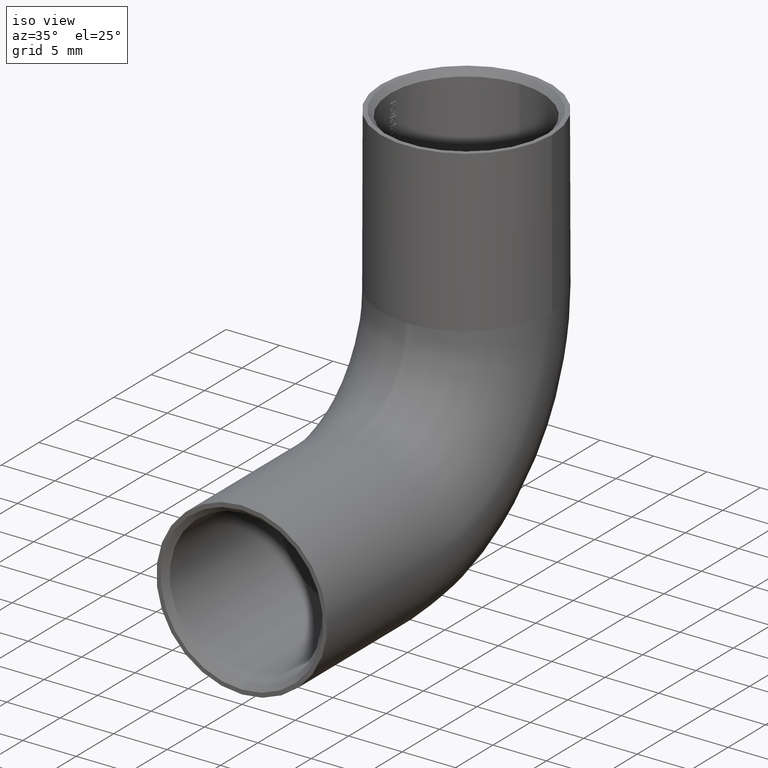
[diagram: clean part render]
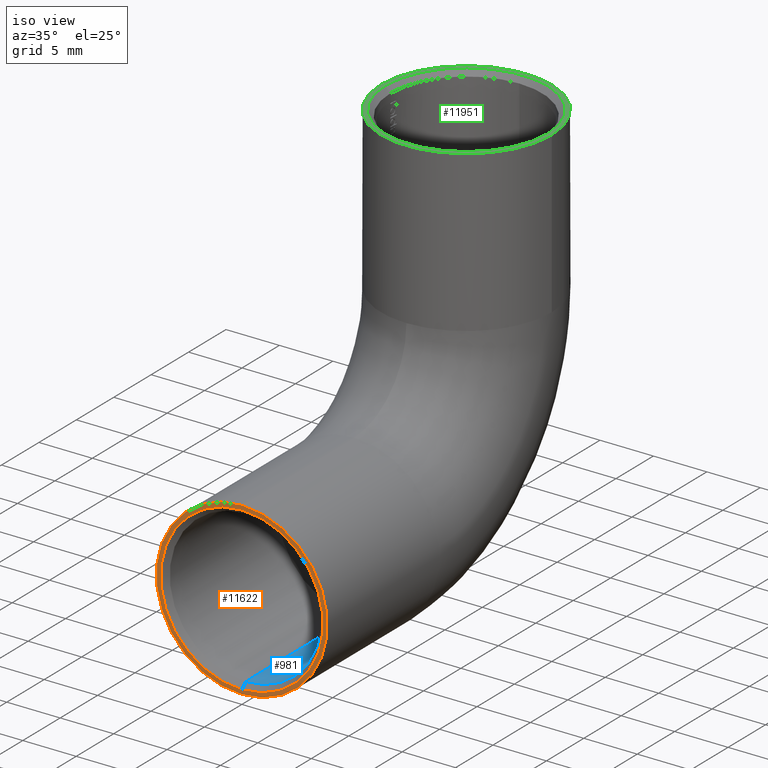
[diagram: same view with three faces highlighted in distinct colors, each labeled with its STEP entity id]
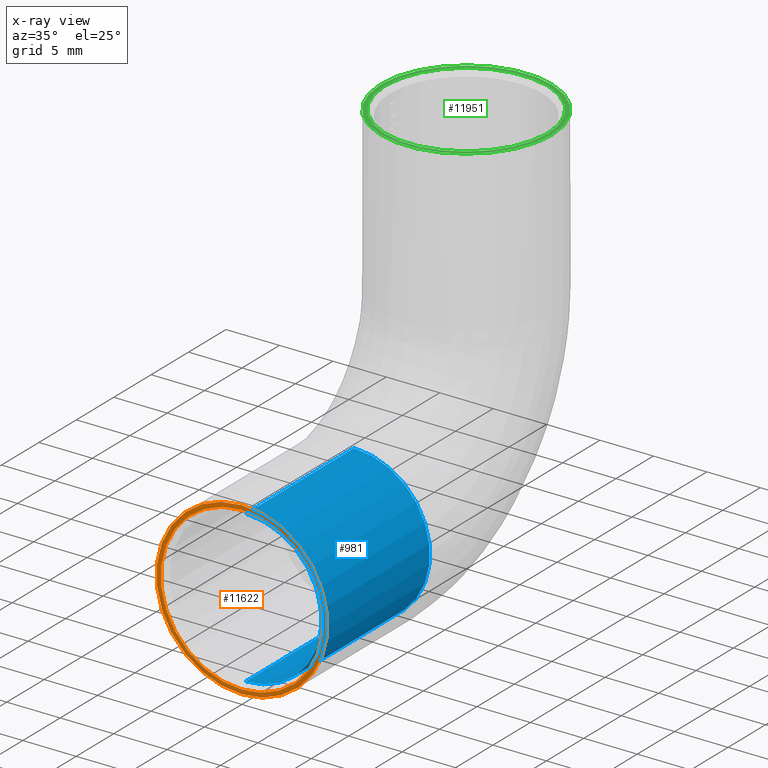
[diagram: x-ray of the same camera — body ghosted, the three highlighted faces saturated]
A machine part, iso view with three faces highlighted in distinct colors.
The next image is the same camera in x-ray (body ghosted, the three faces saturated) — at least one of them is partly hidden behind the body in this view.
Their STEP definitions:

[orange] entity #11622 — the highlighted planar face has unit normal (0, 1, 0).
#54 = VERTEX_POINT ( 'NONE', #3179 ) ;
#81 = ORIENTED_EDGE ( 'NONE', *, *, #2505, .F. ) ;
#802 = VERTEX_POINT ( 'NONE', #3618 ) ;
#840 = CARTESIAN_POINT ( 'NONE',  ( 0.000000000000000000, 0.000000000000000000, 0.000000000000000000 ) ) ;
#1133 = EDGE_CURVE ( 'NONE', #11104, #54, #6671, .T. ) ;
#1270 = PLANE ( 'NONE',  #3409 ) ;
#1829 = CARTESIAN_POINT ( 'NONE',  ( 0.000000000000000000, 0.000000000000000000, 0.000000000000000000 ) ) ;
#1948 = DIRECTION ( 'NONE',  ( 0.000000000000000000, 0.000000000000000000, 1.000000000000000000 ) ) ;
#2402 = CIRCLE ( 'NONE', #7638, 7.600000000000009415 ) ;
#2505 = EDGE_CURVE ( 'NONE', #802, #4926, #8345, .T. ) ;
#2728 = ORIENTED_EDGE ( 'NONE', *, *, #1133, .T. ) ;
#2842 = DIRECTION ( 'NONE',  ( 0.000000000000000000, 0.000000000000000000, 1.000000000000000000 ) ) ;
#2931 = CARTESIAN_POINT ( 'NONE',  ( 0.000000000000000000, 0.000000000000000000, 0.000000000000000000 ) ) ;
#3179 = CARTESIAN_POINT ( 'NONE',  ( 0.000000000000000000, 0.000000000000000000, -7.600000000000009415 ) ) ;
#3409 = AXIS2_PLACEMENT_3D ( 'NONE', #8233, #11319, #4399 ) ;
#3511 = AXIS2_PLACEMENT_3D ( 'NONE', #7834, #10026, #11296 ) ;
#3618 = CARTESIAN_POINT ( 'NONE',  ( 0.000000000000000000, 0.000000000000000000, -8.000000000000000000 ) ) ;
#3900 = DIRECTION ( 'NONE',  ( 0.000000000000000000, 1.000000000000000000, 0.000000000000000000 ) ) ;
#3992 = EDGE_CURVE ( 'NONE', #4926, #802, #5573, .T. ) ;
#4399 = DIRECTION ( 'NONE',  ( 0.000000000000000000, -0.000000000000000000, 1.000000000000000000 ) ) ;
#4926 = VERTEX_POINT ( 'NONE', #7789 ) ;
#5243 = ORIENTED_EDGE ( 'NONE', *, *, #3992, .F. ) ;
#5573 = CIRCLE ( 'NONE', #6494, 8.000000000000000000 ) ;
#5881 = DIRECTION ( 'NONE',  ( 0.000000000000000000, 1.000000000000000000, 0.000000000000000000 ) ) ;
#6408 = FACE_BOUND ( 'NONE', #10005, .T. ) ;
#6494 = AXIS2_PLACEMENT_3D ( 'NONE', #840, #5881, #8974 ) ;
#6671 = CIRCLE ( 'NONE', #3511, 7.600000000000009415 ) ;
#7638 = AXIS2_PLACEMENT_3D ( 'NONE', #2931, #3900, #1948 ) ;
#7789 = CARTESIAN_POINT ( 'NONE',  ( 9.797174393178825657E-16, 0.000000000000000000, 8.000000000000000000 ) ) ;
#7834 = CARTESIAN_POINT ( 'NONE',  ( 0.000000000000000000, 0.000000000000000000, 0.000000000000000000 ) ) ;
#8233 = CARTESIAN_POINT ( 'NONE',  ( 0.000000000000000000, 0.000000000000000000, 0.000000000000000000 ) ) ;
#8345 = CIRCLE ( 'NONE', #9899, 8.000000000000000000 ) ;
#8894 = DIRECTION ( 'NONE',  ( 0.000000000000000000, 1.000000000000000000, 0.000000000000000000 ) ) ;
#8974 = DIRECTION ( 'NONE',  ( 0.000000000000000000, 0.000000000000000000, 1.000000000000000000 ) ) ;
#9456 = CARTESIAN_POINT ( 'NONE',  ( 9.307315673519895320E-16, 0.000000000000000000, 7.600000000000009415 ) ) ;
#9899 = AXIS2_PLACEMENT_3D ( 'NONE', #1829, #8894, #2842 ) ;
#10005 = EDGE_LOOP ( 'NONE', ( #12309, #2728 ) ) ;
#10026 = DIRECTION ( 'NONE',  ( 0.000000000000000000, 1.000000000000000000, 0.000000000000000000 ) ) ;
#10363 = EDGE_LOOP ( 'NONE', ( #81, #5243 ) ) ;
#11104 = VERTEX_POINT ( 'NONE', #9456 ) ;
#11296 = DIRECTION ( 'NONE',  ( 0.000000000000000000, 0.000000000000000000, 1.000000000000000000 ) ) ;
#11303 = EDGE_CURVE ( 'NONE', #54, #11104, #2402, .T. ) ;
#11319 = DIRECTION ( 'NONE',  ( 0.000000000000000000, 1.000000000000000000, 0.000000000000000000 ) ) ;
#11622 = ADVANCED_FACE ( 'NONE', ( #6408, #12484 ), #1270, .F. ) ;
#12309 = ORIENTED_EDGE ( 'NONE', *, *, #11303, .T. ) ;
#12484 = FACE_OUTER_BOUND ( 'NONE', #10363, .T. ) ;

[blue] entity #981 — the highlighted cylindrical surface (partial cylindrical patch) has radius 7.1 mm, axis along (-0, -1, -0).
#321 = EDGE_CURVE ( 'NONE', #9307, #2222, #9599, .T. ) ;
#770 = AXIS2_PLACEMENT_3D ( 'NONE', #12517, #8528, #11491 ) ;
#949 = VERTEX_POINT ( 'NONE', #8073 ) ;
#981 = ADVANCED_FACE ( 'NONE', ( #3558 ), #11788, .F. ) ;
#1159 = CARTESIAN_POINT ( 'NONE',  ( 8.694992273946207746E-16, 15.00000000000000000, 7.099999999999999645 ) ) ;
#1646 = CIRCLE ( 'NONE', #770, 7.099999999999999645 ) ;
#2216 = DIRECTION ( 'NONE',  ( 0.000000000000000000, -1.000000000000000000, 0.000000000000000000 ) ) ;
#2222 = VERTEX_POINT ( 'NONE', #9980 ) ;
#2333 = EDGE_CURVE ( 'NONE', #12699, #949, #9887, .T. ) ;
#2615 = VECTOR ( 'NONE', #6971, 1000.000000000000000 ) ;
#2640 = VECTOR ( 'NONE', #12781, 1000.000000000000000 ) ;
#2843 = ORIENTED_EDGE ( 'NONE', *, *, #2333, .T. ) ;
#2911 = ORIENTED_EDGE ( 'NONE', *, *, #4488, .T. ) ;
#3558 = FACE_OUTER_BOUND ( 'NONE', #6488, .T. ) ;
#3941 = DIRECTION ( 'NONE',  ( -0.000000000000000000, -1.000000000000000000, -0.000000000000000000 ) ) ;
#4488 = EDGE_CURVE ( 'NONE', #949, #2222, #8225, .T. ) ;
#4605 = ORIENTED_EDGE ( 'NONE', *, *, #321, .F. ) ;
#5772 = ORIENTED_EDGE ( 'NONE', *, *, #9458, .F. ) ;
#6151 = AXIS2_PLACEMENT_3D ( 'NONE', #9885, #3941, #9231 ) ;
#6488 = EDGE_LOOP ( 'NONE', ( #4605, #5772, #2843, #2911 ) ) ;
#6971 = DIRECTION ( 'NONE',  ( -0.000000000000000000, -1.000000000000000000, -0.000000000000000000 ) ) ;
#7762 = CARTESIAN_POINT ( 'NONE',  ( 8.694992273946207746E-16, 15.00000000000000000, 7.099999999999999645 ) ) ;
#8040 = CARTESIAN_POINT ( 'NONE',  ( 0.000000000000000000, 0.5000000000000004441, 0.000000000000000000 ) ) ;
#8073 = CARTESIAN_POINT ( 'NONE',  ( 0.000000000000000000, 0.5000000000000004441, -7.099999999999999645 ) ) ;
#8225 = CIRCLE ( 'NONE', #12665, 7.099999999999999645 ) ;
#8528 = DIRECTION ( 'NONE',  ( 0.000000000000000000, -1.000000000000000000, 0.000000000000000000 ) ) ;
#8804 = CARTESIAN_POINT ( 'NONE',  ( 0.000000000000000000, 15.00000000000000000, -7.099999999999999645 ) ) ;
#9231 = DIRECTION ( 'NONE',  ( 0.000000000000000000, 0.000000000000000000, -1.000000000000000000 ) ) ;
#9307 = VERTEX_POINT ( 'NONE', #1159 ) ;
#9458 = EDGE_CURVE ( 'NONE', #12699, #9307, #1646, .T. ) ;
#9599 = LINE ( 'NONE', #7762, #2640 ) ;
#9885 = CARTESIAN_POINT ( 'NONE',  ( 0.000000000000000000, 15.00000000000000000, 0.000000000000000000 ) ) ;
#9887 = LINE ( 'NONE', #12904, #2615 ) ;
#9980 = CARTESIAN_POINT ( 'NONE',  ( 8.694992273946207746E-16, 0.5000000000000004441, 7.099999999999999645 ) ) ;
#11491 = DIRECTION ( 'NONE',  ( 0.000000000000000000, 0.000000000000000000, -1.000000000000000000 ) ) ;
#11788 = CYLINDRICAL_SURFACE ( 'NONE', #6151, 7.099999999999999645 ) ;
#12026 = DIRECTION ( 'NONE',  ( 0.000000000000000000, 0.000000000000000000, 1.000000000000000000 ) ) ;
#12517 = CARTESIAN_POINT ( 'NONE',  ( 0.000000000000000000, 15.00000000000000000, 0.000000000000000000 ) ) ;
#12665 = AXIS2_PLACEMENT_3D ( 'NONE', #8040, #2216, #12026 ) ;
#12699 = VERTEX_POINT ( 'NONE', #8804 ) ;
#12781 = DIRECTION ( 'NONE',  ( -0.000000000000000000, -1.000000000000000000, -0.000000000000000000 ) ) ;
#12904 = CARTESIAN_POINT ( 'NONE',  ( 0.000000000000000000, 15.00000000000000000, -7.099999999999999645 ) ) ;

[green] entity #11951 — the highlighted planar face has unit normal (0, -0, 1).
#250 = CIRCLE ( 'NONE', #4525, 7.600000000000005862 ) ;
#1706 = AXIS2_PLACEMENT_3D ( 'NONE', #9047, #2199, #10962 ) ;
#2008 = CARTESIAN_POINT ( 'NONE',  ( 0.000000000000000000, 29.99999999999999645, 30.00000000000000000 ) ) ;
#2158 = CARTESIAN_POINT ( 'NONE',  ( 0.000000000000000000, 29.99999999999999645, 30.00000000000000000 ) ) ;
#2199 = DIRECTION ( 'NONE',  ( 0.000000000000000000, -1.608122649676636601E-16, 1.000000000000000000 ) ) ;
#2389 = FACE_OUTER_BOUND ( 'NONE', #3865, .T. ) ;
#2524 = VERTEX_POINT ( 'NONE', #11689 ) ;
#3486 = DIRECTION ( 'NONE',  ( 0.000000000000000000, -1.000000000000000000, 0.000000000000000000 ) ) ;
#3546 = CARTESIAN_POINT ( 'NONE',  ( 7.600000000000005862, 29.99999999999999645, 30.00000000000000000 ) ) ;
#3865 = EDGE_LOOP ( 'NONE', ( #5369, #4198 ) ) ;
#3978 = CIRCLE ( 'NONE', #10110, 7.600000000000005862 ) ;
#4139 = DIRECTION ( 'NONE',  ( 0.000000000000000000, -1.608122649676636601E-16, 1.000000000000000000 ) ) ;
#4198 = ORIENTED_EDGE ( 'NONE', *, *, #5805, .T. ) ;
#4525 = AXIS2_PLACEMENT_3D ( 'NONE', #2008, #7996, #9972 ) ;
#4589 = EDGE_LOOP ( 'NONE', ( #12481, #11673 ) ) ;
#4987 = VERTEX_POINT ( 'NONE', #9928 ) ;
#5369 = ORIENTED_EDGE ( 'NONE', *, *, #10454, .T. ) ;
#5805 = EDGE_CURVE ( 'NONE', #4987, #2524, #7606, .T. ) ;
#6297 = VERTEX_POINT ( 'NONE', #3546 ) ;
#6715 = EDGE_CURVE ( 'NONE', #6906, #6297, #250, .T. ) ;
#6906 = VERTEX_POINT ( 'NONE', #10406 ) ;
#7157 = DIRECTION ( 'NONE',  ( 0.000000000000000000, -1.608122649676636601E-16, 1.000000000000000000 ) ) ;
#7234 = CARTESIAN_POINT ( 'NONE',  ( 0.000000000000000000, 29.99999999999999645, 30.00000000000000000 ) ) ;
#7606 = CIRCLE ( 'NONE', #10588, 8.000000000000000000 ) ;
#7996 = DIRECTION ( 'NONE',  ( -0.000000000000000000, 1.608122649676636601E-16, -1.000000000000000000 ) ) ;
#8220 = AXIS2_PLACEMENT_3D ( 'NONE', #7234, #4139, #8222 ) ;
#8222 = DIRECTION ( 'NONE',  ( 0.000000000000000000, -1.000000000000000000, -1.608122649676636601E-16 ) ) ;
#8278 = FACE_BOUND ( 'NONE', #4589, .T. ) ;
#8419 = DIRECTION ( 'NONE',  ( -0.000000000000000000, 1.608122649676636601E-16, -1.000000000000000000 ) ) ;
#9047 = CARTESIAN_POINT ( 'NONE',  ( 0.000000000000000000, 29.99999999999999645, 30.00000000000000000 ) ) ;
#9177 = DIRECTION ( 'NONE',  ( 0.000000000000000000, -1.000000000000000000, 0.000000000000000000 ) ) ;
#9208 = PLANE ( 'NONE',  #8220 ) ;
#9691 = CIRCLE ( 'NONE', #1706, 8.000000000000000000 ) ;
#9722 = EDGE_CURVE ( 'NONE', #6297, #6906, #3978, .T. ) ;
#9928 = CARTESIAN_POINT ( 'NONE',  ( -8.000000000000000000, 29.99999999999999645, 30.00000000000000000 ) ) ;
#9972 = DIRECTION ( 'NONE',  ( 0.000000000000000000, -1.000000000000000000, 0.000000000000000000 ) ) ;
#10110 = AXIS2_PLACEMENT_3D ( 'NONE', #10341, #8419, #3486 ) ;
#10341 = CARTESIAN_POINT ( 'NONE',  ( 0.000000000000000000, 29.99999999999999645, 30.00000000000000000 ) ) ;
#10406 = CARTESIAN_POINT ( 'NONE',  ( -7.600000000000005862, 29.99999999999999645, 30.00000000000000000 ) ) ;
#10454 = EDGE_CURVE ( 'NONE', #2524, #4987, #9691, .T. ) ;
#10588 = AXIS2_PLACEMENT_3D ( 'NONE', #2158, #7157, #9177 ) ;
#10962 = DIRECTION ( 'NONE',  ( 0.000000000000000000, -1.000000000000000000, 0.000000000000000000 ) ) ;
#11673 = ORIENTED_EDGE ( 'NONE', *, *, #6715, .T. ) ;
#11689 = CARTESIAN_POINT ( 'NONE',  ( 8.000000000000000000, 29.99999999999999645, 30.00000000000000000 ) ) ;
#11951 = ADVANCED_FACE ( 'NONE', ( #8278, #2389 ), #9208, .T. ) ;
#12481 = ORIENTED_EDGE ( 'NONE', *, *, #9722, .T. ) ;